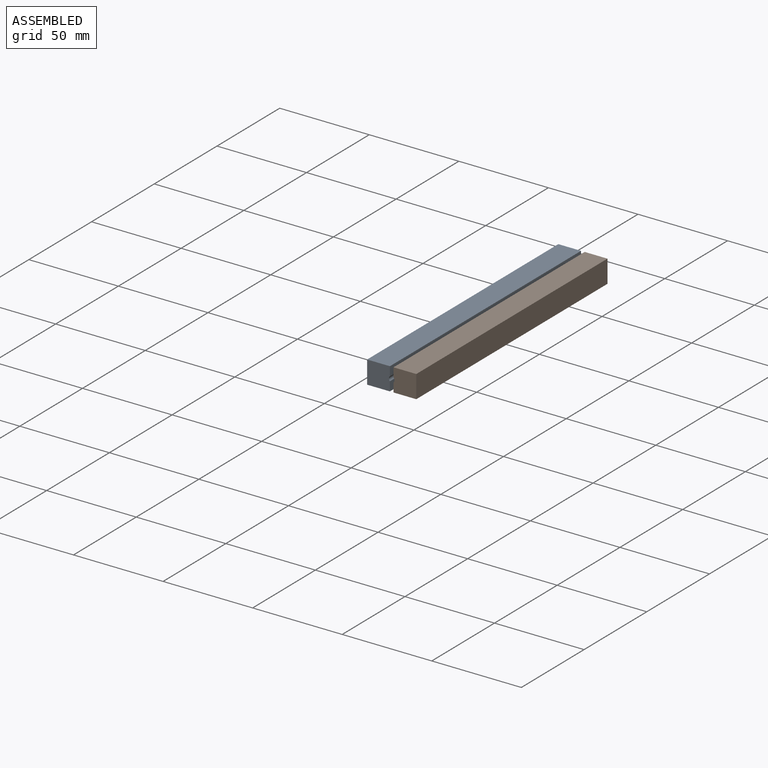
[diagram: assembled view]
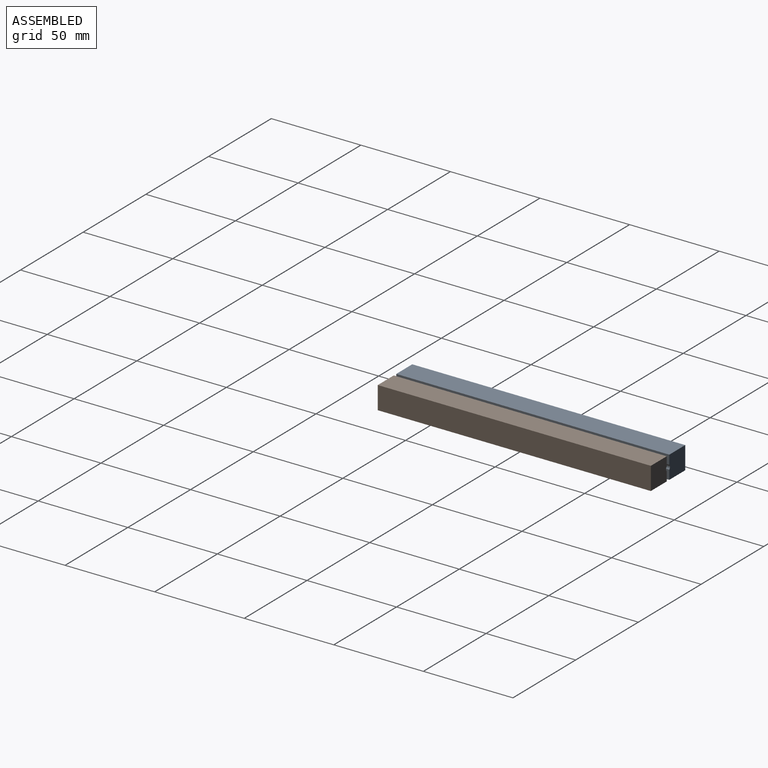
[diagram: assembled view, second angle]
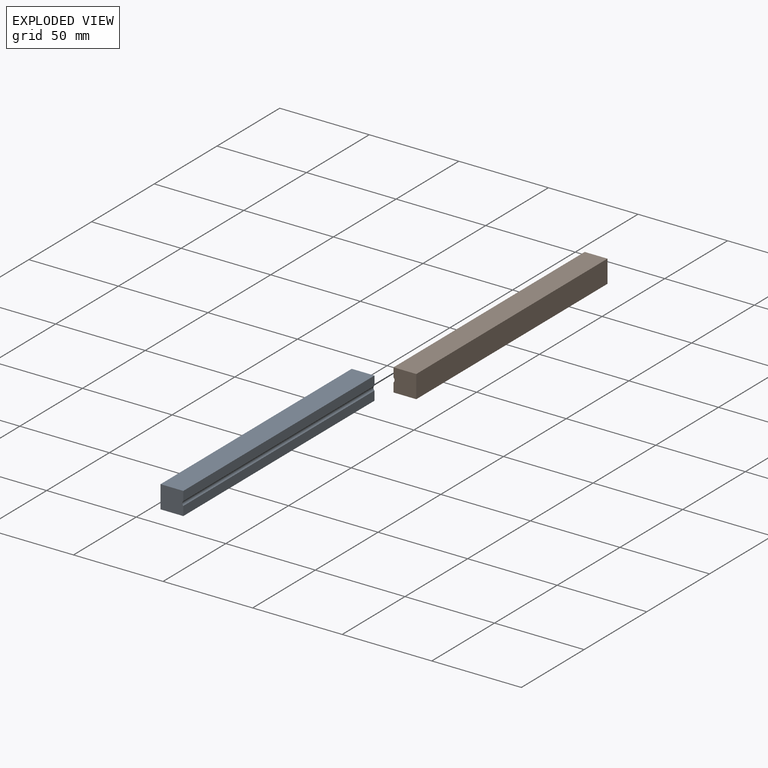
[diagram: exploded view]
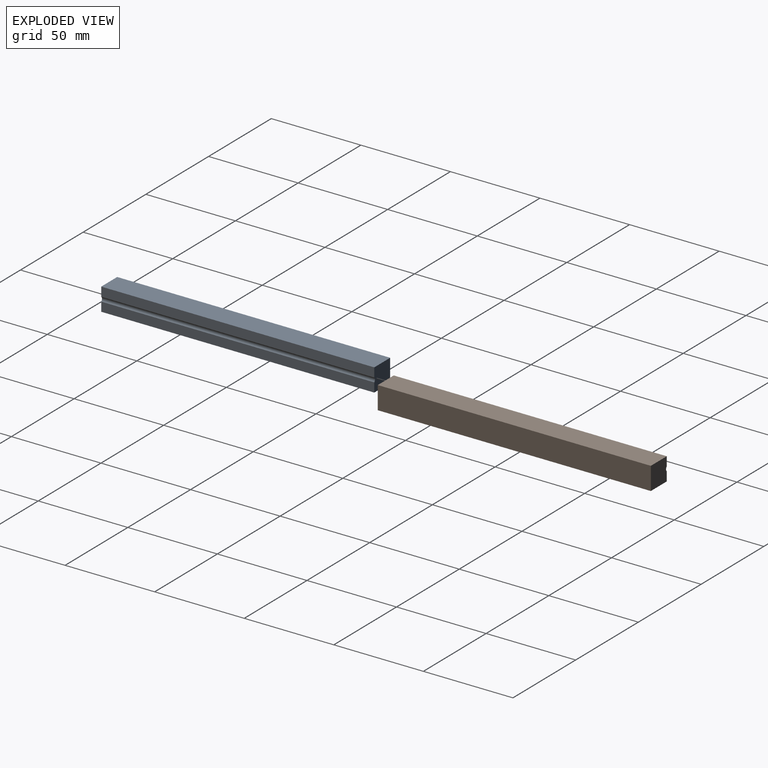
[diagram: exploded view, second angle]
ASSEMBLY  parts=2 mates=2
PART A: 8 faces, bbox 12.7x152.4x12.7 mm
  f0: plane 152.4x12.7mm, normal (0,0,1), area 1935.5mm2, adj f1,f5,f6,f7
  f1: plane 152.4x12.7mm, normal (-1,0,0), area 1935.5mm2, adj f0,f2,f6,f7
  f2: plane 152.4x12.7mm, normal (0,0,-1), area 1935.5mm2, adj f1,f3,f6,f7
  f3: plane 152.4x5.13mm, normal (1,0,0), area 781.8mm2, adj f2,f4,f6,f7
  f4: cylinder r=1.59mm len=152.4mm, axis (0,-1,0), area 424mm2, adj f3,f5,f6,f7
  f5: plane 152.4x5.13mm, normal (1,0,0), area 781.8mm2, adj f0,f4,f6,f7
  f6: plane 12.7x12.7mm, normal (0,1,0), area 160.3mm2, adj f0,f1,f2,f3,f4,f5
  f7: plane 12.7x12.7mm, normal (0,-1,0), area 160.3mm2, adj f0,f1,f2,f3,f4,f5
PART B: same geometry as A
PLACE A t=(20.94,-76.2,17.88)mm
PLACE B rot(axis=(0,1,0),180deg) t=(20.94,-76.2,17.88)mm
MATE cylindrical B.f4 <-> A.f4  axis (0,-1,0) through (20.94,-76.2,17.88)mm
MATE planar B.f7 <-> A.f7  axis (0,-1,0) through (28.34,-76.2,17.88)mm
